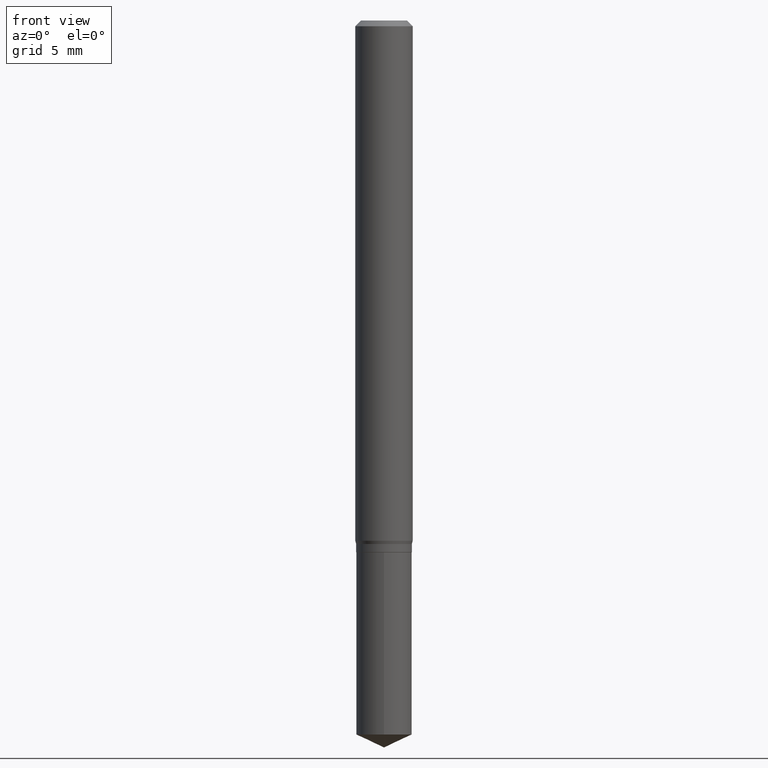
[diagram: clean part render]
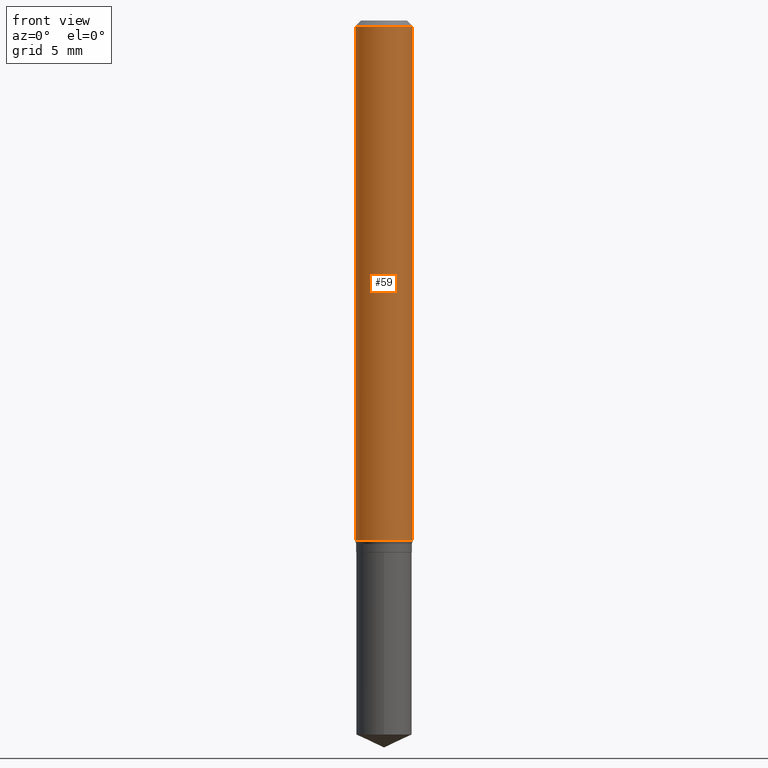
[diagram: same view with one face highlighted and labeled with its STEP entity id]
A machine part, front view. The second image highlights one B-rep face of the part: STEP entity #59.
In plain terms, the highlighted cylindrical surface (edge-blend (fillet) strip) has radius 1.4999 mm, axis along (-0, 0, 1).
Its self-contained STEP definition (entity closure, byte-faithful):
#4 = CARTESIAN_POINT ( 'NONE',  ( 2.888098660104662014E-31, -4.123439461173777182E-17, -0.01181000000000006350 ) ) ;
#15 = DIRECTION ( 'NONE',  ( 1.000000000000000000, -6.982962677686265133E-15, 0.000000000000000000 ) ) ;
#26 = ORIENTED_EDGE ( 'NONE', *, *, #419, .F. ) ;
#44 = ORIENTED_EDGE ( 'NONE', *, *, #248, .T. ) ;
#51 = EDGE_LOOP ( 'NONE', ( #281, #361, #44, #26 ) ) ;
#59 = ADVANCED_FACE ( 'NONE', ( #411 ), #254, .T. ) ;
#64 = CARTESIAN_POINT ( 'NONE',  ( 0.000000000000000000, 0.000000000000000000, 0.000000000000000000 ) ) ;
#72 = AXIS2_PLACEMENT_3D ( 'NONE', #210, #430, #15 ) ;
#110 = LINE ( 'NONE', #391, #488 ) ;
#148 = CARTESIAN_POINT ( 'NONE',  ( 0.05905000000000013016, -4.150913617390172394E-15, -1.070768911086753983 ) ) ;
#155 = CIRCLE ( 'NONE', #475, 0.05904999999999999832 ) ;
#162 = VERTEX_POINT ( 'NONE', #262 ) ;
#181 = VERTEX_POINT ( 'NONE', #148 ) ;
#210 = CARTESIAN_POINT ( 'NONE',  ( 2.618531970695483094E-29, -3.738569671272796685E-15, -1.070768911086753983 ) ) ;
#221 = DIRECTION ( 'NONE',  ( -2.445468806185136597E-29, 3.491481338843145583E-15, 1.000000000000000000 ) ) ;
#229 = CIRCLE ( 'NONE', #72, 0.05905000000000013016 ) ;
#243 = CARTESIAN_POINT ( 'NONE',  ( -0.05904999999999999832, -1.470326547475926925E-15, -0.01181000000000006350 ) ) ;
#247 = VECTOR ( 'NONE', #278, 39.37007874015748143 ) ;
#248 = EDGE_CURVE ( 'NONE', #181, #162, #487, .T. ) ;
#254 = CYLINDRICAL_SURFACE ( 'NONE', #396, 0.05905000000000006771 ) ;
#262 = CARTESIAN_POINT ( 'NONE',  ( 0.05904999999999999832, -4.535783407291118600E-16, -0.01181000000000006350 ) ) ;
#278 = DIRECTION ( 'NONE',  ( -2.445468806185136877E-29, 3.491481338843145188E-15, 1.000000000000000000 ) ) ;
#281 = ORIENTED_EDGE ( 'NONE', *, *, #444, .F. ) ;
#309 = DIRECTION ( 'NONE',  ( -2.445468806185136597E-29, 3.491481338843145583E-15, 1.000000000000000000 ) ) ;
#316 = CARTESIAN_POINT ( 'NONE',  ( 0.05905000000000006771, -4.123439461173745257E-16, 2.879382386107503723E-30 ) ) ;
#333 = VERTEX_POINT ( 'NONE', #243 ) ;
#361 = ORIENTED_EDGE ( 'NONE', *, *, #376, .T. ) ;
#376 = EDGE_CURVE ( 'NONE', #459, #181, #229, .T. ) ;
#391 = CARTESIAN_POINT ( 'NONE',  ( -0.05905000000000006771, 4.195754854663396409E-16, -2.904631170795525045E-30 ) ) ;
#396 = AXIS2_PLACEMENT_3D ( 'NONE', #64, #221, #477 ) ;
#411 = FACE_OUTER_BOUND ( 'NONE', #51, .T. ) ;
#417 = CARTESIAN_POINT ( 'NONE',  ( -0.05905000000000013016, -3.318994185806457192E-15, -1.070768911086753983 ) ) ;
#419 = EDGE_CURVE ( 'NONE', #333, #162, #155, .T. ) ;
#430 = DIRECTION ( 'NONE',  ( -2.445468806185136597E-29, 3.491481338843145583E-15, 1.000000000000000000 ) ) ;
#444 = EDGE_CURVE ( 'NONE', #459, #333, #110, .T. ) ;
#455 = DIRECTION ( 'NONE',  ( -2.445468806185136877E-29, 3.491481338843145188E-15, 1.000000000000000000 ) ) ;
#456 = DIRECTION ( 'NONE',  ( 1.000000000000000000, -6.982962677686266711E-15, 0.000000000000000000 ) ) ;
#459 = VERTEX_POINT ( 'NONE', #417 ) ;
#475 = AXIS2_PLACEMENT_3D ( 'NONE', #4, #309, #456 ) ;
#477 = DIRECTION ( 'NONE',  ( 1.000000000000000000, -6.982962677686266711E-15, 4.876176775795936353E-29 ) ) ;
#487 = LINE ( 'NONE', #316, #247 ) ;
#488 = VECTOR ( 'NONE', #455, 39.37007874015748143 ) ;